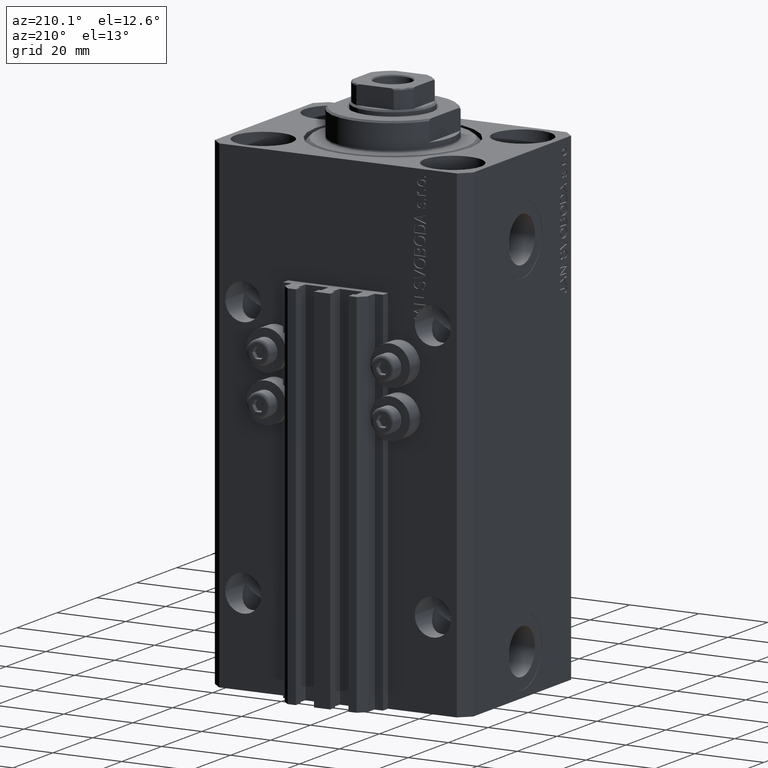
[diagram: clean part render]
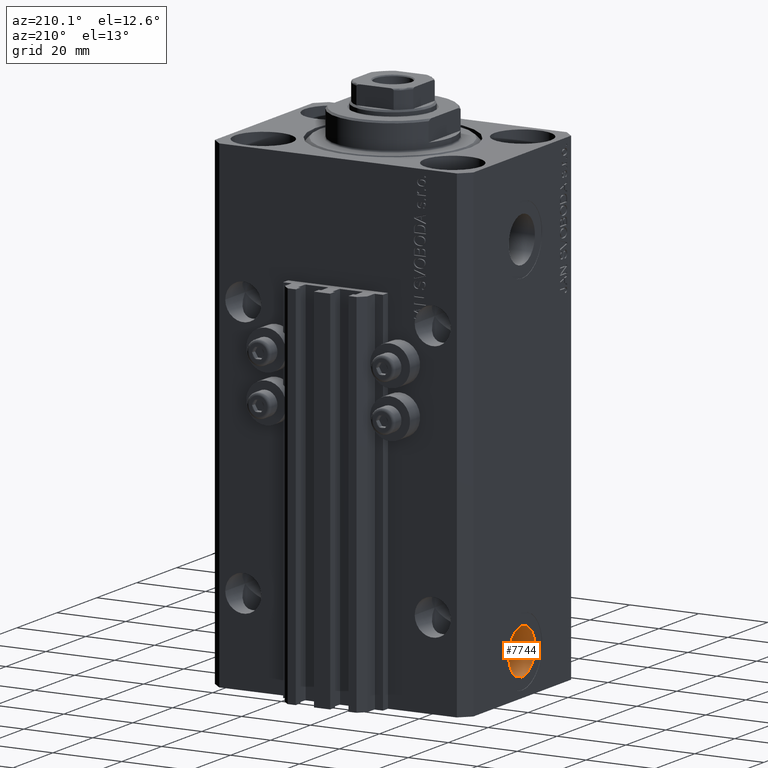
[diagram: same view with one face highlighted and labeled with its STEP entity id]
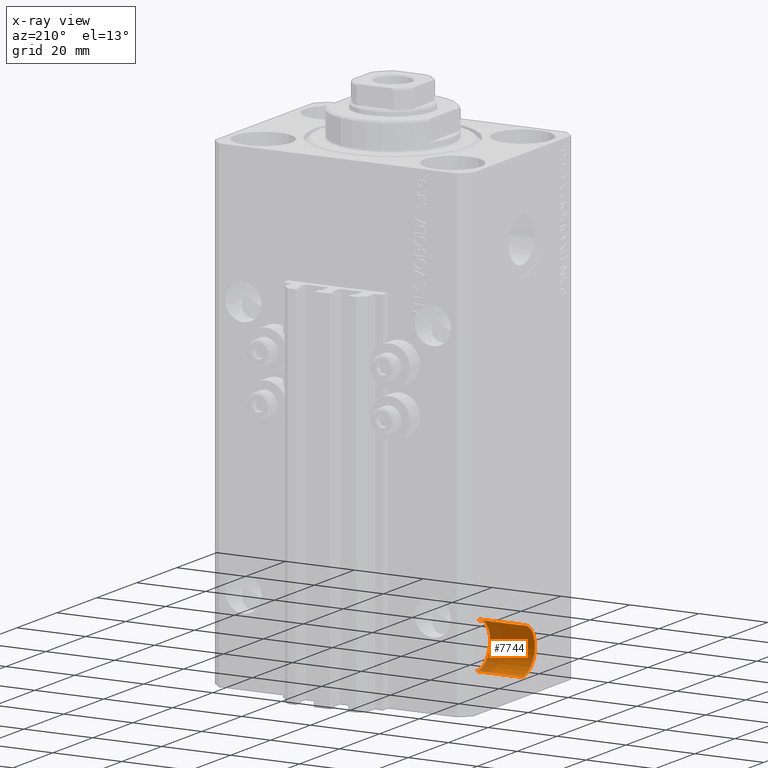
[diagram: x-ray of the same camera — body ghosted, the highlighted face saturated]
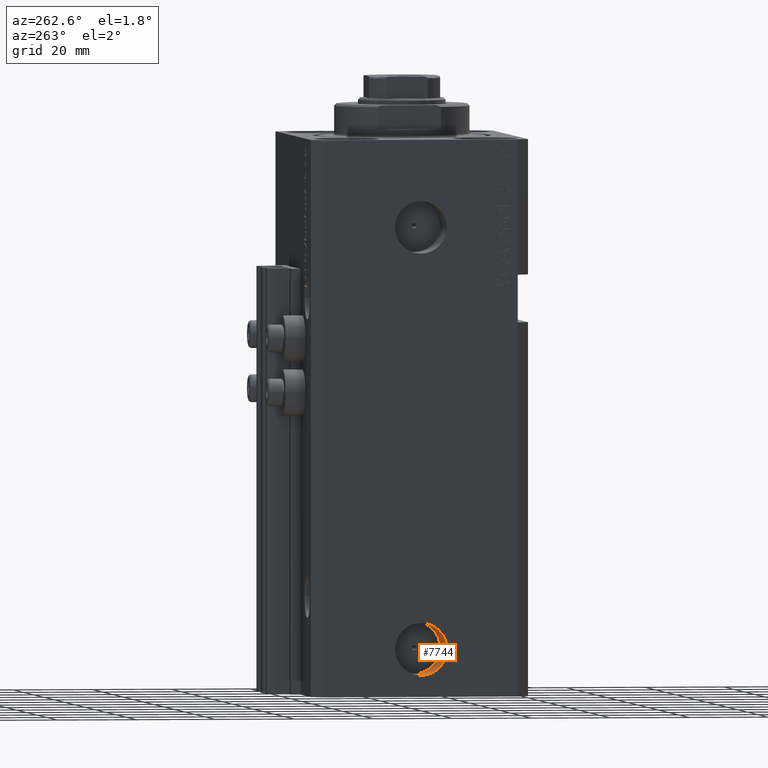
[diagram: same view with one face highlighted and labeled with its STEP entity id]
A machine part, auxiliary view. The second image highlights one B-rep face of the part: STEP entity #7744.
The next image is the same camera in x-ray: the body ghosted, the highlighted face saturated — about 28% of this face is hidden behind the body in this view.
A second angle (auxiliary view) of the same face is appended — the face is thin or edge-on in the first view.
In plain terms, the highlighted cylindrical surface (edge-blend (fillet) strip) has radius 6.58 mm, axis along (-1, -0, -0).
Its self-contained STEP definition (entity closure, byte-faithful):
#733 = CARTESIAN_POINT ( 'NONE',  ( -24.39999999999999147, -1.486966143524716201E-14, -134.5800000000000125 ) ) ;
#996 = LINE ( 'NONE', #5111, #2822 ) ;
#1497 = DIRECTION ( 'NONE',  ( 0.000000000000000000, 0.000000000000000000, 1.000000000000000000 ) ) ;
#1867 = CARTESIAN_POINT ( 'NONE',  ( -24.39999999999999147, -1.567547902908612105E-14, -121.4200000000000017 ) ) ;
#2588 = DIRECTION ( 'NONE',  ( -1.000000000000000000, -0.000000000000000000, -0.000000000000000000 ) ) ;
#2822 = VECTOR ( 'NONE', #15774, 1000.000000000000000 ) ;
#3271 = VERTEX_POINT ( 'NONE', #34815 ) ;
#4247 = CIRCLE ( 'NONE', #16629, 6.580000000000002736 ) ;
#5111 = CARTESIAN_POINT ( 'NONE',  ( -24.39999999999999147, -1.486966143524716201E-14, -134.5800000000000125 ) ) ;
#5138 = EDGE_CURVE ( 'NONE', #32852, #21634, #4247, .T. ) ;
#5156 = ORIENTED_EDGE ( 'NONE', *, *, #43495, .F. ) ;
#6080 = VECTOR ( 'NONE', #2588, 1000.000000000000000 ) ;
#7744 = ADVANCED_FACE ( 'NONE', ( #12922 ), #15427, .F. ) ;
#8473 = AXIS2_PLACEMENT_3D ( 'NONE', #33588, #15406, #15161 ) ;
#9296 = DIRECTION ( 'NONE',  ( 0.000000000000000000, 0.000000000000000000, 1.000000000000000000 ) ) ;
#9532 = EDGE_LOOP ( 'NONE', ( #5156, #25579, #28218, #36729 ) ) ;
#10240 = CARTESIAN_POINT ( 'NONE',  ( -37.39999999999999147, -1.567547902908612105E-14, -121.4200000000000017 ) ) ;
#12922 = FACE_OUTER_BOUND ( 'NONE', #9532, .T. ) ;
#15161 = DIRECTION ( 'NONE',  ( 0.000000000000000000, 0.000000000000000000, 1.000000000000000000 ) ) ;
#15406 = DIRECTION ( 'NONE',  ( -1.000000000000000000, 0.000000000000000000, 0.000000000000000000 ) ) ;
#15427 = CYLINDRICAL_SURFACE ( 'NONE', #19050, 6.580000000000002736 ) ;
#15774 = DIRECTION ( 'NONE',  ( -1.000000000000000000, -0.000000000000000000, -0.000000000000000000 ) ) ;
#16629 = AXIS2_PLACEMENT_3D ( 'NONE', #26947, #42427, #1497 ) ;
#19050 = AXIS2_PLACEMENT_3D ( 'NONE', #19550, #42477, #9296 ) ;
#19550 = CARTESIAN_POINT ( 'NONE',  ( -24.39999999999999147, -1.567547902908612105E-14, -128.0000000000000000 ) ) ;
#21634 = VERTEX_POINT ( 'NONE', #10240 ) ;
#24203 = CARTESIAN_POINT ( 'NONE',  ( -37.39999999999999147, -1.486966143524716201E-14, -134.5800000000000125 ) ) ;
#25579 = ORIENTED_EDGE ( 'NONE', *, *, #37466, .T. ) ;
#26947 = CARTESIAN_POINT ( 'NONE',  ( -37.39999999999999147, -1.567547902908612105E-14, -128.0000000000000000 ) ) ;
#28218 = ORIENTED_EDGE ( 'NONE', *, *, #5138, .T. ) ;
#32852 = VERTEX_POINT ( 'NONE', #24203 ) ;
#33588 = CARTESIAN_POINT ( 'NONE',  ( -24.39999999999999147, -1.567547902908612105E-14, -128.0000000000000000 ) ) ;
#34802 = CIRCLE ( 'NONE', #8473, 6.580000000000002736 ) ;
#34815 = CARTESIAN_POINT ( 'NONE',  ( -24.39999999999999147, -1.567547902908612105E-14, -121.4200000000000017 ) ) ;
#35071 = LINE ( 'NONE', #1867, #6080 ) ;
#36729 = ORIENTED_EDGE ( 'NONE', *, *, #41793, .F. ) ;
#37466 = EDGE_CURVE ( 'NONE', #41375, #32852, #996, .T. ) ;
#41375 = VERTEX_POINT ( 'NONE', #733 ) ;
#41793 = EDGE_CURVE ( 'NONE', #3271, #21634, #35071, .T. ) ;
#42427 = DIRECTION ( 'NONE',  ( -1.000000000000000000, 0.000000000000000000, 0.000000000000000000 ) ) ;
#42477 = DIRECTION ( 'NONE',  ( -1.000000000000000000, -0.000000000000000000, -0.000000000000000000 ) ) ;
#43495 = EDGE_CURVE ( 'NONE', #41375, #3271, #34802, .T. ) ;